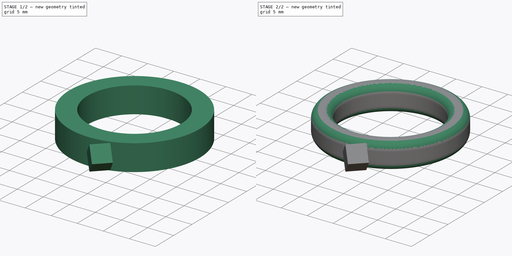
[diagram: build sequence overview — one tinted view per stage of 2, left to right]
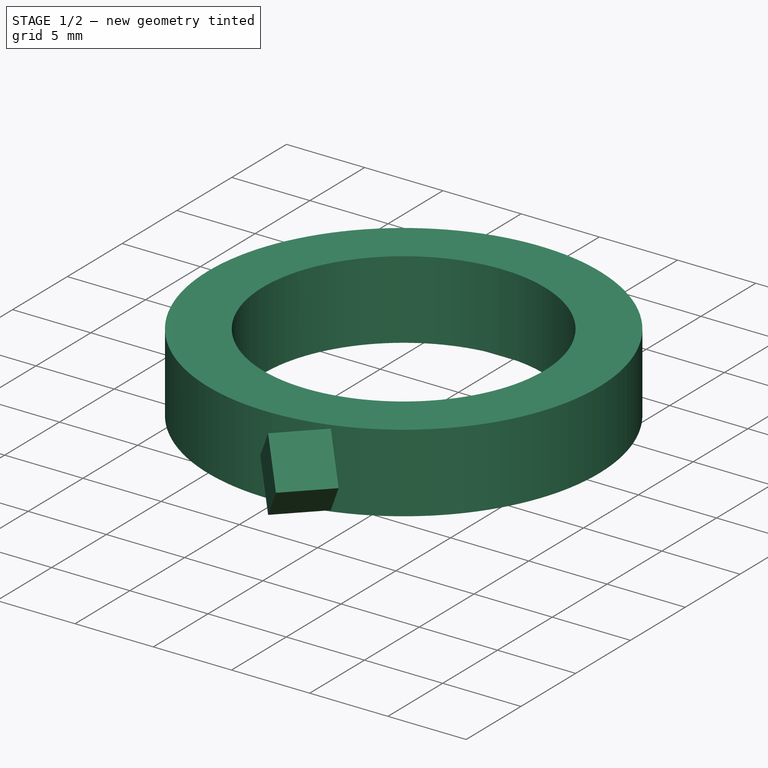
[diagram: stage 1 of 2 — iso view after this stage's code; geometry added in this stage tinted green]
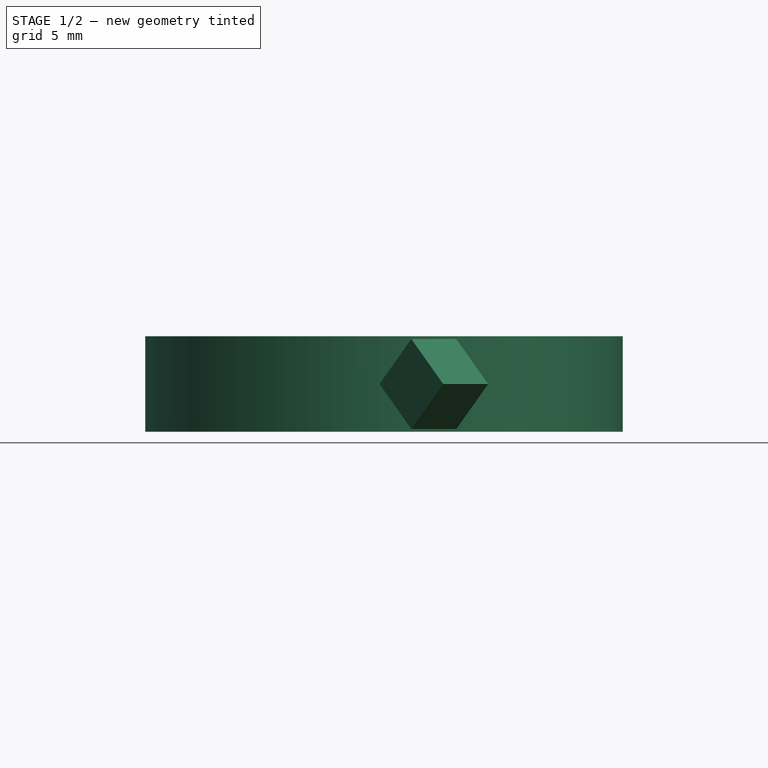
[diagram: stage 1 of 2 — front view after this stage's code; geometry added in this stage tinted green]
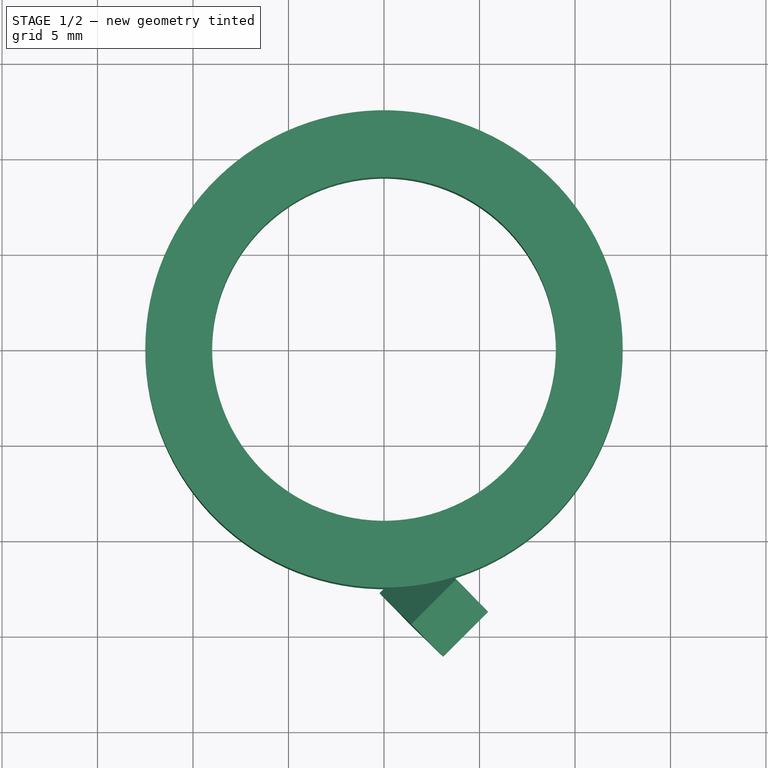
[diagram: stage 1 of 2 — top view after this stage's code; geometry added in this stage tinted green]
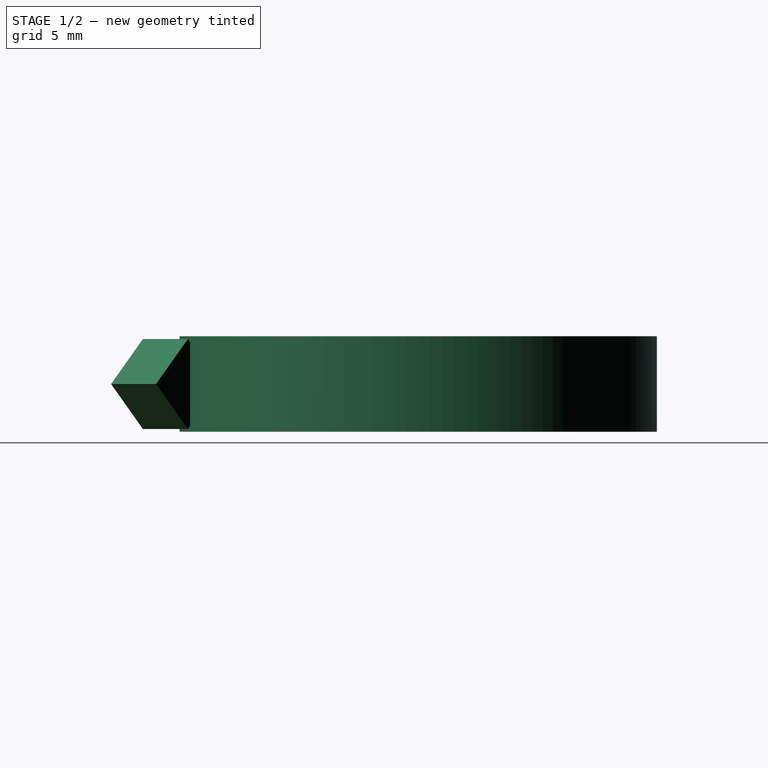
[diagram: stage 1 of 2 — right view after this stage's code; geometry added in this stage tinted green]
FCSTD DOCUMENT  (FreeCAD 0.20R29603 (Git))
Label: ring_gems
License: All rights reserved
LicenseURL: http://en.wikipedia.org/wiki/All_rights_reserved
objects: Sketcher::SketchObject×2, Spreadsheet::Sheet×1, PartDesign::Revolution×1, PartDesign::Groove×1, PartDesign::Body×1, Part::Box×1
note: 8 computed .brp shape members not serialized (recipe doc carries the construction recipe); baked Part::Feature solids carry a one-line shape summary decoded from their .brp

FEATURE [Spreadsheet::Sheet] Spreadsheet
  cells = A1=Ring diameter; B1(ring_diameter)=18; A2=Ring width; B2(ring_width)=5; A3=Ring thickness; B3(ring_thickness)=3.5; A4=chamfer size; B4(spline_distance)=1.5; A5=gem_size
FEATURE [Sketcher::SketchObject] Sketch
  FullyConstrained = true
  MapMode = 5
  Placement = pos=(0,0,0) rot=(1,0,0;1.5708rad)
  Support = -> [XZ_Plane]
  expr: Constraints[13] = <<Spreadsheet>>.ring_thickness
  expr: Constraints[2] = <<Spreadsheet>>.ring_diameter / 2
  expr: Constraints[5] = <<Spreadsheet>>.ring_width
  sketch-geometry (5):
    g0: LineSegment StartX=0 StartY=0 StartZ=0 EndX=-9 EndY=0 EndZ=0
    g1: LineSegment StartX=-9 StartY=2.5 StartZ=0 EndX=-9 EndY=-2.5 EndZ=0
    g2: LineSegment StartX=-9 StartY=2.5 StartZ=0 EndX=-12.5 EndY=2.5 EndZ=0
    g3: LineSegment StartX=-12.5 StartY=2.5 StartZ=0 EndX=-12.5 EndY=-2.5 EndZ=0
    g4: LineSegment StartX=-12.5 StartY=-2.5 StartZ=0 EndX=-9 EndY=-2.5 EndZ=0
  constraints (14):
    c: Coincident(g0,g-1)
    c: Horizontal(g0)
    c: Distance(g0) = 9
    c: Vertical(g1)
    c: Symmetric(g1,g1,g0)
    c: Distance(g1) = 5
    c: Coincident(g1,g2)
    c: Horizontal(g2)
    c: Coincident(g2,g3)
    c: Vertical(g3)
    c: Coincident(g3,g4)
    c: Coincident(g4,g1)
    c: Horizontal(g4)
    c: Distance(g2) = 3.5
FEATURE [PartDesign::Revolution] Revolution  label="ring_body"
  Angle = 360
  Axis = (0,-2e-16,1)
  Base = (0,0,0)
  Placement = pos=(0,0,0) rot=(1,0,0;1.5708rad)
  Profile = -> Sketch
  ReferenceAxis = -> Sketch [V_Axis]
FEATURE [PartDesign::Body] Body
  Group = -> [Sketch,Revolution,Sketch001,Groove]
  Origin = -> Origin
  Tip = -> Groove
FEATURE [Part::Box] Box  label="gem"
  AttacherType = Attacher::AttachEngine3D
  Height = 3.33333
  Length = 3.33333
  Placement = pos=(2.12132,-10.3934,0) rot=(0.156558,-0.377964,0.912487;3.86433rad)
  Width = 3.33333
  expr: Height = <<Spreadsheet>>.ring_width / 1.5
  expr: Length = <<Spreadsheet>>.ring_width / 1.5
  expr: Width = <<Spreadsheet>>.ring_width / 1.5
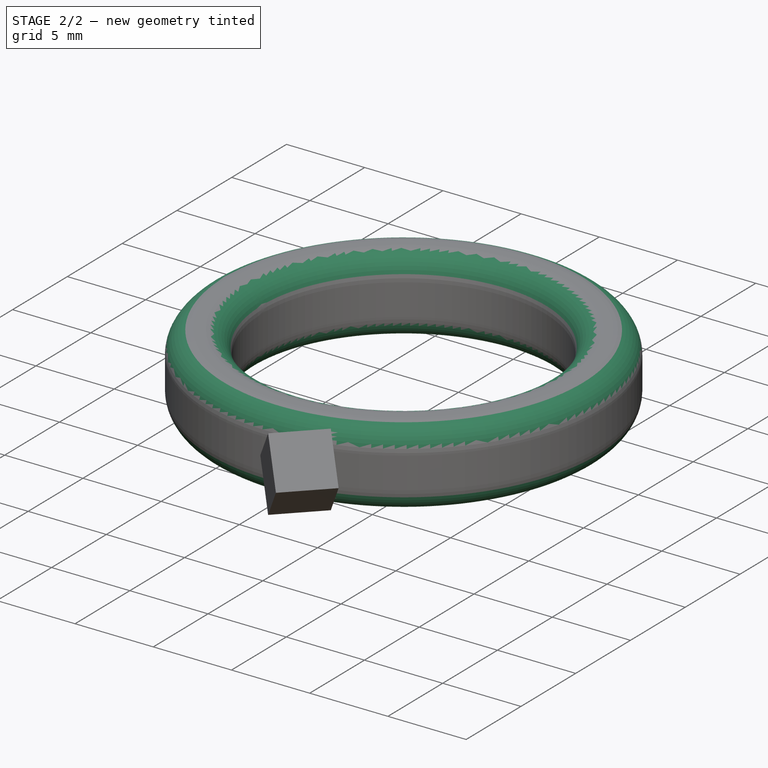
[diagram: stage 2 of 2 — iso view after this stage's code; geometry added in this stage tinted green]
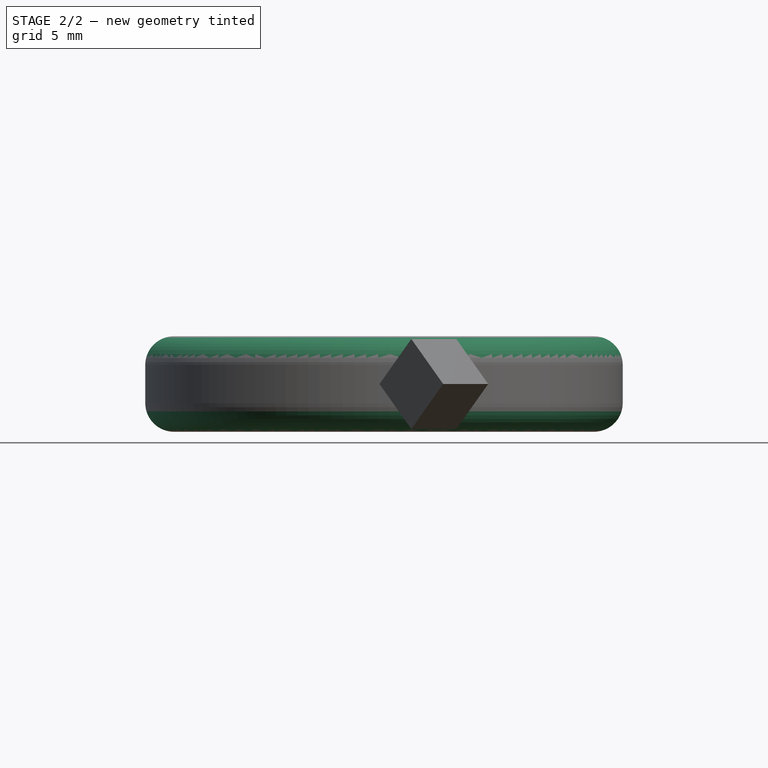
[diagram: stage 2 of 2 — front view after this stage's code; geometry added in this stage tinted green]
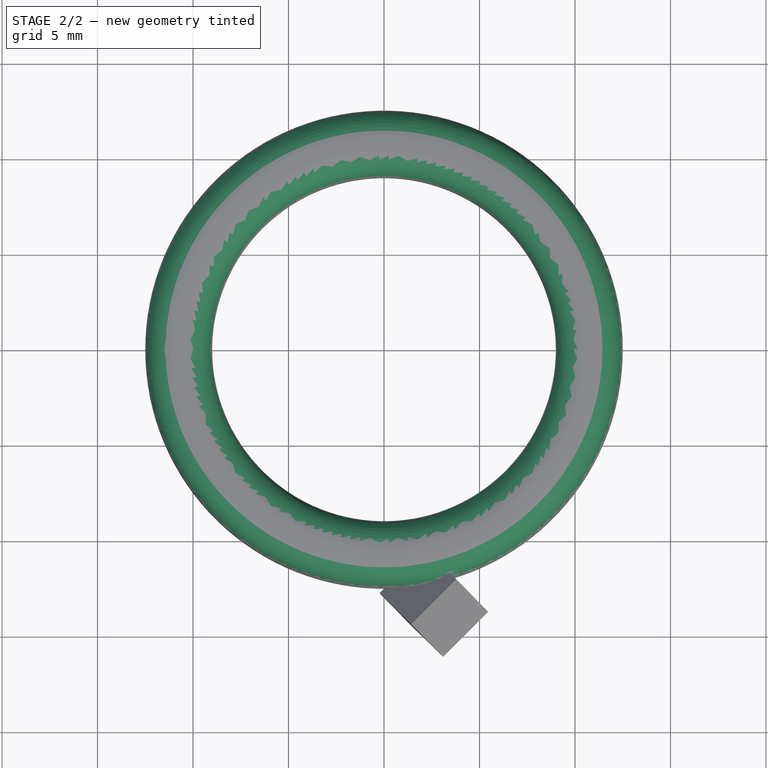
[diagram: stage 2 of 2 — top view after this stage's code; geometry added in this stage tinted green]
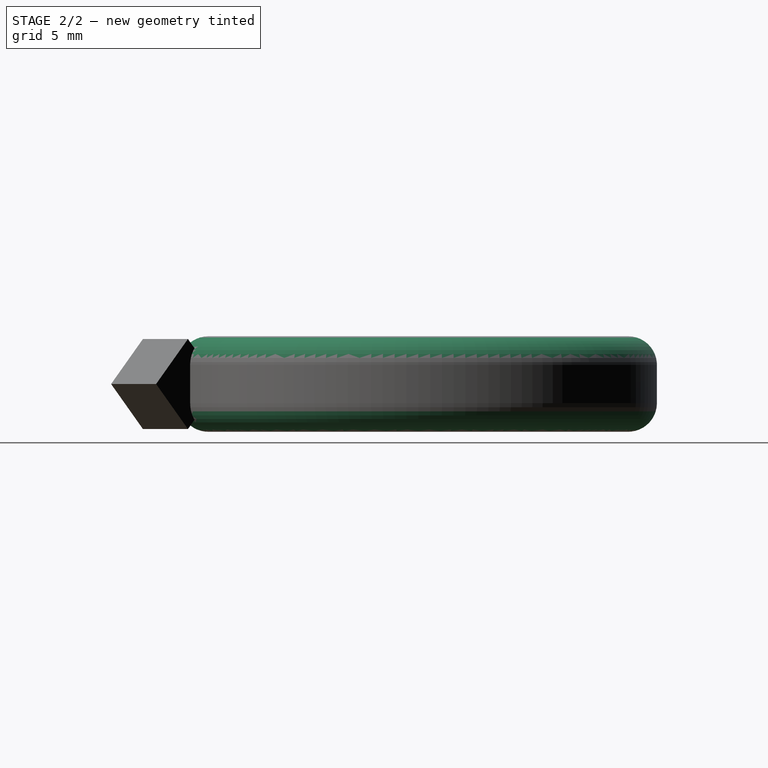
[diagram: stage 2 of 2 — right view after this stage's code; geometry added in this stage tinted green]
FEATURE [Sketcher::SketchObject] Sketch001
  FullyConstrained = true
  MapMode = 5
  Placement = pos=(0,0,0) rot=(1,0,0;1.5708rad)
  Support = -> [XZ_Plane]
  expr: Constraints[11] = <<Spreadsheet>>.ring_width
  expr: Constraints[12] = <<Spreadsheet>>.ring_thickness
  expr: Constraints[17] = <<Spreadsheet>>.spline_distance
  expr: Constraints[18] = <<Spreadsheet>>.spline_distance
  expr: Constraints[19] = <<Spreadsheet>>.spline_distance
  expr: Constraints[25] = <<Spreadsheet>>.spline_distance
  expr: Constraints[26] = <<Spreadsheet>>.spline_distance
  expr: Constraints[27] = <<Spreadsheet>>.spline_distance
  expr: Constraints[28] = <<Spreadsheet>>.spline_distance
  expr: Constraints[29] = <<Spreadsheet>>.spline_distance
  expr: Constraints[2] = <<Spreadsheet>>.ring_diameter / 2
  sketch-geometry (33):
    g0: LineSegment StartX=0 StartY=0 StartZ=0 EndX=-9 EndY=0 EndZ=0
    g1: LineSegment StartX=-12.5 StartY=2.5 StartZ=0 EndX=-9 EndY=2.5 EndZ=0
    g2: LineSegment StartX=-9 StartY=2.5 StartZ=0 EndX=-9 EndY=-2.5 EndZ=0
    g3: LineSegment StartX=-9 StartY=-2.5 StartZ=0 EndX=-12.5 EndY=-2.5 EndZ=0
    g4: LineSegment StartX=-12.5 StartY=-2.5 StartZ=0 EndX=-12.5 EndY=2.5 EndZ=0
    g5: GeomPoint X=-10.5 Y=2.5 Z=0
    g6: GeomPoint X=-11 Y=2.5 Z=0
    g7: GeomPoint X=-12.5 Y=1 Z=0
    g8: GeomPoint X=-9 Y=1 Z=0
    g9: GeomPoint X=-9 Y=-1 Z=0
    g10: GeomPoint X=-10.5 Y=-2.5 Z=0
    g11: GeomPoint X=-12.5 Y=-1 Z=0
    g12: GeomPoint X=-11 Y=-2.5 Z=0
    g13: LineSegment StartX=-10.5 StartY=2.5 StartZ=0 EndX=-10.5 EndY=1 EndZ=0
    g14: LineSegment StartX=-10.5 StartY=1 StartZ=0 EndX=-9 EndY=1 EndZ=0
    g15: LineSegment StartX=-11 StartY=2.5 StartZ=0 EndX=-11 EndY=1 EndZ=0
    g16: LineSegment StartX=-11 StartY=1 StartZ=0 EndX=-12.5 EndY=1 EndZ=0
    g17: LineSegment StartX=-12.5 StartY=-1 StartZ=0 EndX=-11 EndY=-1 EndZ=0
    g18: LineSegment StartX=-11 StartY=-1 StartZ=0 EndX=-11 EndY=-2.5 EndZ=0
    g19: LineSegment StartX=-9 StartY=-1 StartZ=0 EndX=-10.5 EndY=-1 EndZ=0
    g20: LineSegment StartX=-10.5 StartY=-1 StartZ=0 EndX=-10.5 EndY=-2.5 EndZ=0
    g21: LineSegment StartX=-9 StartY=1 StartZ=0 EndX=-9 EndY=2.5 EndZ=0
    g22: LineSegment StartX=-9 StartY=2.5 StartZ=0 EndX=-10.5 EndY=2.5 EndZ=0
    g23: LineSegment StartX=-11 StartY=2.5 StartZ=0 EndX=-12.5 EndY=2.5 EndZ=0
    g24: LineSegment StartX=-12.5 StartY=2.5 StartZ=0 EndX=-12.5 EndY=1 EndZ=0
    g25: LineSegment StartX=-12.5 StartY=-1 StartZ=0 EndX=-12.5 EndY=-2.5 EndZ=0
    g26: LineSegment StartX=-12.5 StartY=-2.5 StartZ=0 EndX=-11 EndY=-2.5 EndZ=0
    g27: LineSegment StartX=-10.5 StartY=-2.5 StartZ=0 EndX=-9 EndY=-2.5 EndZ=0
    g28: LineSegment StartX=-9 StartY=-2.5 StartZ=0 EndX=-9 EndY=-1 EndZ=0
    g29: ArcOfCircle CenterX=-11 CenterY=1 CenterZ=0 NormalX=0 NormalY=0 NormalZ=1 AngleXU=0 Radius=1.5 StartAngle=1.5708 EndAngle=3.14159
    g30: ArcOfCircle CenterX=-10.5 CenterY=1 CenterZ=0 NormalX=0 NormalY=0 NormalZ=1 AngleXU=0 Radius=1.5 StartAngle=-8.118e-13 EndAngle=1.5708
    g31: ArcOfCircle CenterX=-10.5 CenterY=-1 CenterZ=0 NormalX=0 NormalY=0 NormalZ=1 AngleXU=0 Radius=1.5 StartAngle=4.71239 EndAngle=6.28319
    g32: ArcOfCircle CenterX=-11 CenterY=-1 CenterZ=0 NormalX=0 NormalY=0 NormalZ=1 AngleXU=0 Radius=1.5 StartAngle=3.14159 EndAngle=4.71239
  constraints (74):
    c: Coincident(g0,g-1)
    c: PointOnObject(g0,g-1)
    c: Distance(g0) = 9
    c: Coincident(g2,g3)
    c: Coincident(g3,g4)
    c: Coincident(g4,g1)
    c: Horizontal(g1)
    c: Horizontal(g3)
    c: Vertical(g2)
    c: Vertical(g4)
    c: Symmetric(g1,g2,g0)
    c: Distance(g2) = 5
    c: Distance(g1) = 3.5
    c: Coincident(g1,g2)
    c: PointOnObject(g5,g1)
    c: PointOnObject(g6,g1)
    c: PointOnObject(g7,g4)
    c: Distance(g6,g1) = 1.5
    c: Distance(g5,g1) = 1.5
    c: Distance(g7,g1) = 1.5
    c: PointOnObject(g8,g2)
    c: PointOnObject(g9,g2)
    c: PointOnObject(g10,g3)
    c: PointOnObject(g11,g4)
    c: PointOnObject(g12,g3)
    c: Distance(g8,g1) = 1.5
    c: Distance(g9,g2) = 1.5
    c: Distance(g10,g2) = 1.5
    c: Distance(g12,g3) = 1.5
    c: Distance(g3,g11) = 1.5
    c: Coincident(g13,g5)
    c: Vertical(g13)
    c: Coincident(g13,g14)
    c: Coincident(g14,g8)
    c: Coincident(g15,g6)
    c: Vertical(g15)
    c: Coincident(g15,g16)
    c: Coincident(g16,g7)
    c: Coincident(g17,g11)
    c: Horizontal(g17)
    c: Coincident(g17,g18)
    c: Coincident(g18,g12)
    c: Coincident(g19,g9)
    c: Horizontal(g19)
    c: Coincident(g19,g20)
    c: Coincident(g20,g10)
    c: Coincident(g21,g8)
    c: Coincident(g21,g1)
    c: Coincident(g21,g22)
    c: Coincident(g22,g5)
    c: Coincident(g23,g6)
    c: Coincident(g23,g1)
    c: Coincident(g23,g24)
    c: Coincident(g24,g7)
    c: Coincident(g25,g11)
    c: Coincident(g25,g3)
    c: Coincident(g25,g26)
    c: Coincident(g26,g12)
    c: Coincident(g27,g10)
    c: Coincident(g27,g2)
    c: Coincident(g27,g28)
    c: Coincident(g28,g9)
    c: Coincident(g29,g15)
    c: Coincident(g29,g23)
    c: Coincident(g29,g24)
    c: Coincident(g30,g13)
    c: Coincident(g30,g21)
    c: Coincident(g30,g22)
    c: Coincident(g31,g19)
    c: Coincident(g31,g27)
    c: Coincident(g31,g28)
    c: Coincident(g32,g17)
    c: Coincident(g32,g25)
    c: Coincident(g32,g26)
FEATURE [PartDesign::Groove] Groove  label="ring_countour"
  Angle = 360
  Axis = (0,-2e-16,1)
  Base = (0,0,0)
  BaseFeature = -> Revolution
  Placement = pos=(0,0,0) rot=(1,0,0;1.5708rad)
  Profile = -> Sketch001
  ReferenceAxis = -> Sketch001 [V_Axis]
  Reversed = true
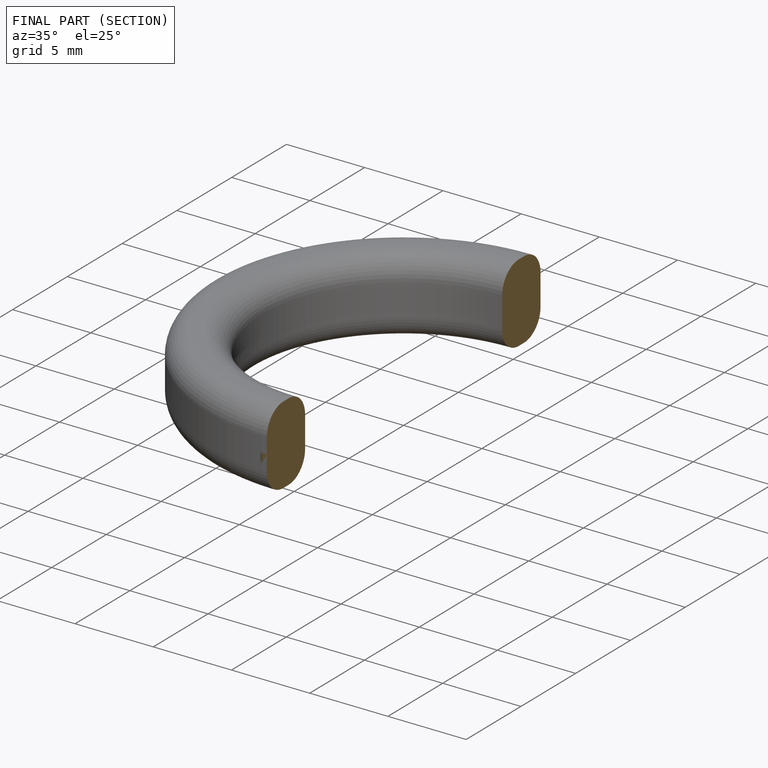
[diagram: finished part — half-section view (interior)]
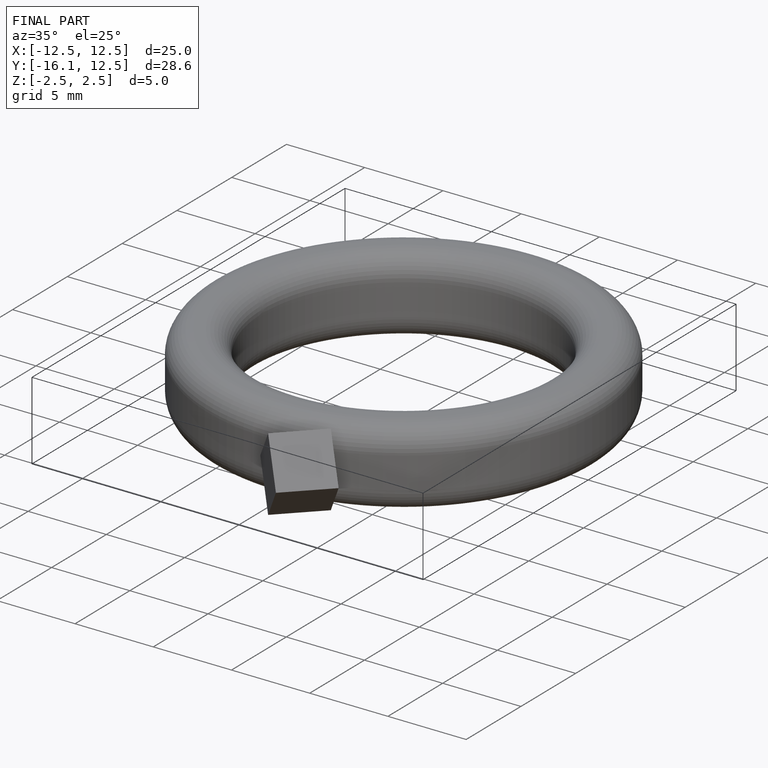
[diagram: finished part — iso view with bounding-box wireframe]
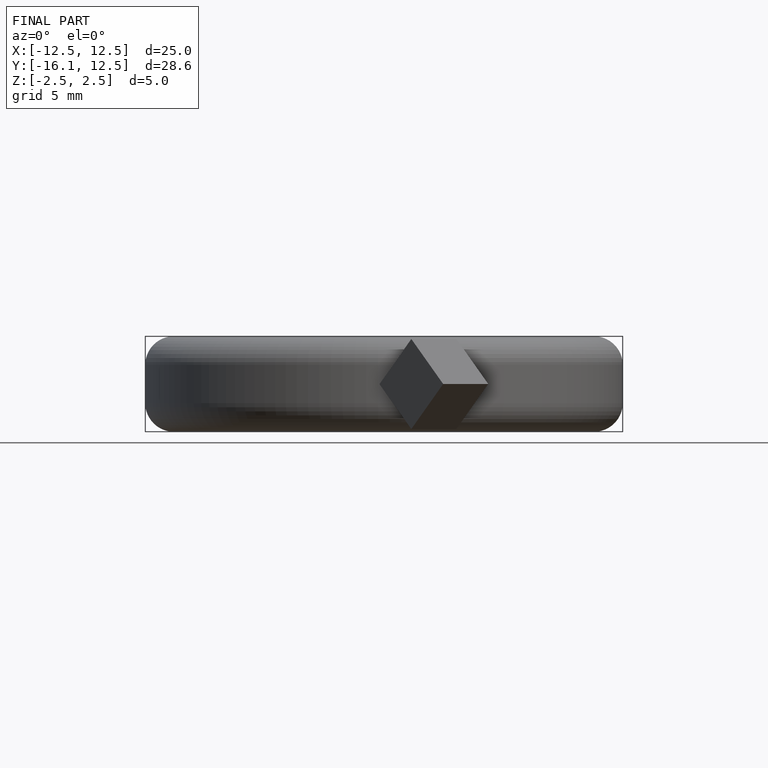
[diagram: finished part — front view with bounding-box wireframe]
